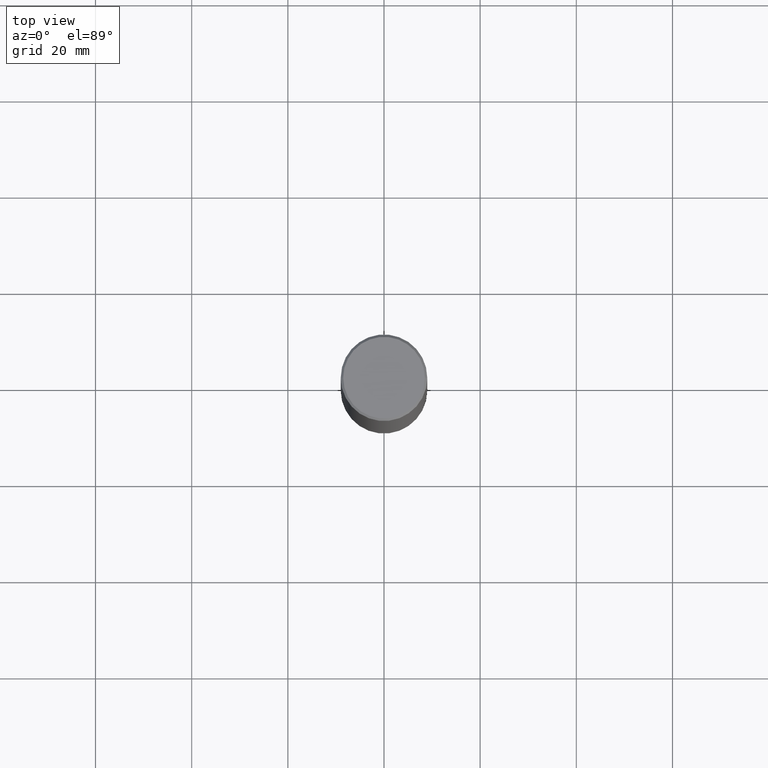
[diagram: clean part render]
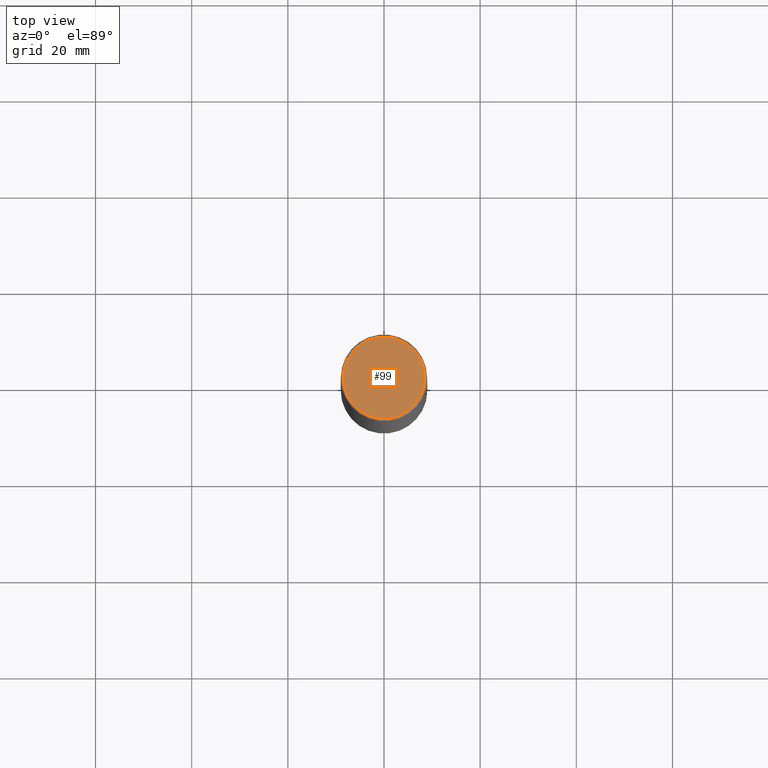
[diagram: same view with one face highlighted and labeled with its STEP entity id]
A machine part, top view. The second image highlights one B-rep face of the part: STEP entity #99.
In plain terms, the highlighted planar face has unit normal (0, -0, -1).
Its self-contained STEP definition (entity closure, byte-faithful):
#53 = DIRECTION ( 'NONE',  ( -2.445468806185136597E-29, 3.491481338843145583E-15, 1.000000000000000000 ) ) ;
#54 = EDGE_CURVE ( 'NONE', #295, #341, #83, .T. ) ;
#64 = CARTESIAN_POINT ( 'NONE',  ( 2.334753571284400520E-15, 0.3343499999999996475, -1.165242529397154385E-15 ) ) ;
#83 = CIRCLE ( 'NONE', #274, 0.3343499999999996475 ) ;
#99 = ADVANCED_FACE ( 'NONE', ( #361 ), #312, .F. ) ;
#100 = CARTESIAN_POINT ( 'NONE',  ( -0.3343499999999996475, 2.369668384672832169E-15, 4.268512490083961526E-18 ) ) ;
#157 = ORIENTED_EDGE ( 'NONE', *, *, #54, .T. ) ;
#192 = DIRECTION ( 'NONE',  ( 1.000000000000000000, -6.982962677686266711E-15, 4.876061227832602160E-29 ) ) ;
#199 = AXIS2_PLACEMENT_3D ( 'NONE', #223, #279, #192 ) ;
#204 = CIRCLE ( 'NONE', #199, 0.3343499999999996475 ) ;
#223 = CARTESIAN_POINT ( 'NONE',  ( -1.043851414335219820E-46, 1.490343170380447200E-32, 4.268512490100411279E-18 ) ) ;
#264 = DIRECTION ( 'NONE',  ( 2.438088387897960049E-29, -3.491481338843145188E-15, -1.000000000000000000 ) ) ;
#270 = EDGE_LOOP ( 'NONE', ( #157, #286 ) ) ;
#274 = AXIS2_PLACEMENT_3D ( 'NONE', #333, #53, #351 ) ;
#279 = DIRECTION ( 'NONE',  ( -2.445468806185136597E-29, 3.491481338843145583E-15, 1.000000000000000000 ) ) ;
#286 = ORIENTED_EDGE ( 'NONE', *, *, #338, .T. ) ;
#289 = DIRECTION ( 'NONE',  ( -1.000000000000000000, 6.982962677686265922E-15, -4.876176775795935793E-29 ) ) ;
#295 = VERTEX_POINT ( 'NONE', #100 ) ;
#312 = PLANE ( 'NONE',  #342 ) ;
#333 = CARTESIAN_POINT ( 'NONE',  ( -1.043851414335219820E-46, 1.490343170380447200E-32, 4.268512490100411279E-18 ) ) ;
#337 = CARTESIAN_POINT ( 'NONE',  ( 0.3343499999999996475, -2.397327298921056737E-15, 4.268512490116958099E-18 ) ) ;
#338 = EDGE_CURVE ( 'NONE', #341, #295, #204, .T. ) ;
#341 = VERTEX_POINT ( 'NONE', #337 ) ;
#342 = AXIS2_PLACEMENT_3D ( 'NONE', #64, #264, #289 ) ;
#351 = DIRECTION ( 'NONE',  ( 1.000000000000000000, -6.982962677686266711E-15, 4.876061227832602160E-29 ) ) ;
#361 = FACE_OUTER_BOUND ( 'NONE', #270, .T. ) ;